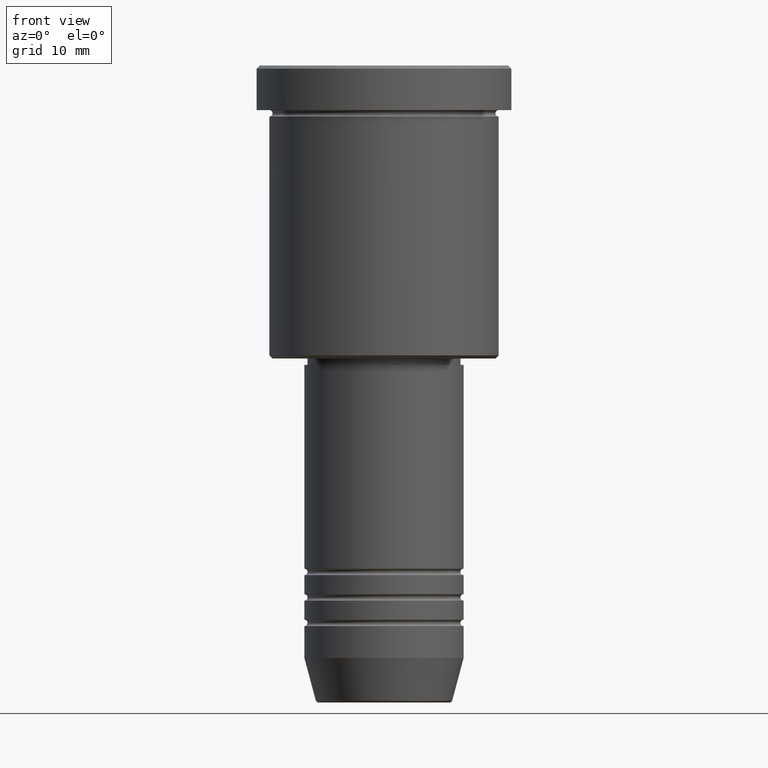
[diagram: clean part render]
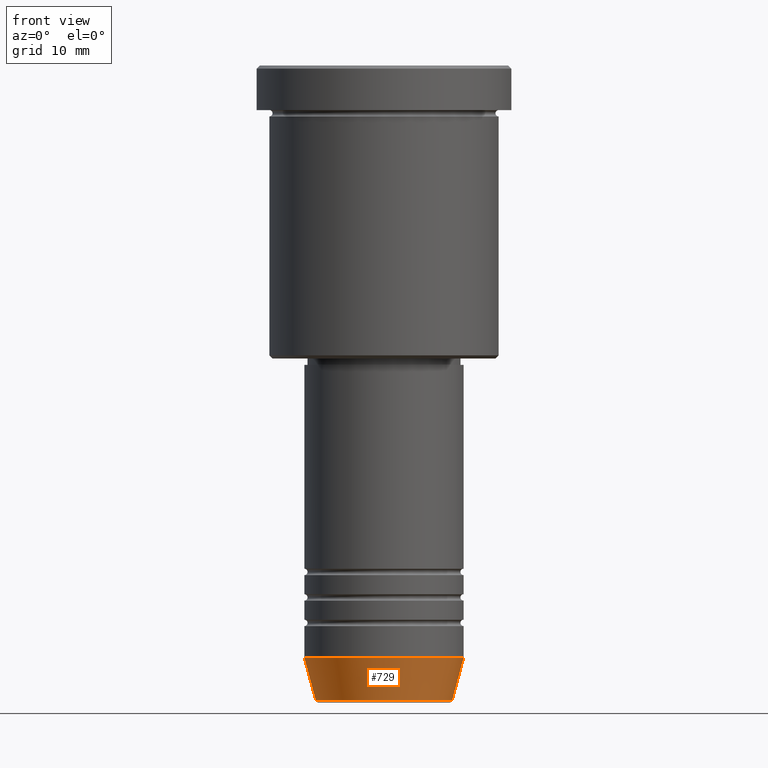
[diagram: same view with one face highlighted and labeled with its STEP entity id]
A machine part, front view. The second image highlights one B-rep face of the part: STEP entity #729.
In plain terms, the highlighted conical surface has half-angle 15 deg.
Its self-contained STEP definition (entity closure, byte-faithful):
#48 = CARTESIAN_POINT ( 'NONE',  ( 0.000000000000000000, 0.000000000000000000, -93.00000000000000000 ) ) ;
#70 = AXIS2_PLACEMENT_3D ( 'NONE', #48, #259, #1154 ) ;
#73 = EDGE_CURVE ( 'NONE', #531, #479, #413, .T. ) ;
#76 = ORIENTED_EDGE ( 'NONE', *, *, #460, .T. ) ;
#82 = CARTESIAN_POINT ( 'NONE',  ( -12.50000000000000000, 1.530808498934191521E-15, -93.00000000000000000 ) ) ;
#93 = CARTESIAN_POINT ( 'NONE',  ( 12.50000000000000000, 0.000000000000000000, -93.00000000000000000 ) ) ;
#119 = ORIENTED_EDGE ( 'NONE', *, *, #1052, .T. ) ;
#140 = ORIENTED_EDGE ( 'NONE', *, *, #73, .F. ) ;
#150 = VECTOR ( 'NONE', #949, 1000.000000000000000 ) ;
#208 = CARTESIAN_POINT ( 'NONE',  ( -10.72365507213718416, 1.422038742429749727E-15, -99.62940952255127058 ) ) ;
#240 = FACE_OUTER_BOUND ( 'NONE', #346, .T. ) ;
#259 = DIRECTION ( 'NONE',  ( -0.000000000000000000, -0.000000000000000000, 1.000000000000000000 ) ) ;
#277 = VECTOR ( 'NONE', #1094, 1000.000000000000000 ) ;
#316 = EDGE_CURVE ( 'NONE', #479, #668, #771, .T. ) ;
#339 = ORIENTED_EDGE ( 'NONE', *, *, #316, .F. ) ;
#344 = DIRECTION ( 'NONE',  ( -0.000000000000000000, -0.000000000000000000, 1.000000000000000000 ) ) ;
#346 = EDGE_LOOP ( 'NONE', ( #140, #76, #119, #339 ) ) ;
#388 = DIRECTION ( 'NONE',  ( 1.000000000000000000, 0.000000000000000000, 0.000000000000000000 ) ) ;
#413 = LINE ( 'NONE', #591, #150 ) ;
#423 = CIRCLE ( 'NONE', #444, 10.72365507213718416 ) ;
#440 = CARTESIAN_POINT ( 'NONE',  ( 12.50000000000000000, 0.000000000000000000, -93.00000000000000000 ) ) ;
#444 = AXIS2_PLACEMENT_3D ( 'NONE', #1079, #979, #388 ) ;
#460 = EDGE_CURVE ( 'NONE', #531, #950, #423, .T. ) ;
#477 = LINE ( 'NONE', #93, #277 ) ;
#479 = VERTEX_POINT ( 'NONE', #82 ) ;
#481 = CARTESIAN_POINT ( 'NONE',  ( 10.72365507213718416, 0.000000000000000000, -99.62940952255127058 ) ) ;
#531 = VERTEX_POINT ( 'NONE', #208 ) ;
#591 = CARTESIAN_POINT ( 'NONE',  ( -12.50000000000000000, 1.530808498934191521E-15, -93.00000000000000000 ) ) ;
#668 = VERTEX_POINT ( 'NONE', #440 ) ;
#729 = ADVANCED_FACE ( 'NONE', ( #240 ), #853, .T. ) ;
#771 = CIRCLE ( 'NONE', #1174, 12.50000000000000000 ) ;
#775 = CARTESIAN_POINT ( 'NONE',  ( 0.000000000000000000, 0.000000000000000000, -93.00000000000000000 ) ) ;
#782 = DIRECTION ( 'NONE',  ( 1.000000000000000000, 0.000000000000000000, 0.000000000000000000 ) ) ;
#853 = CONICAL_SURFACE ( 'NONE', #70, 12.50000000000000000, 0.2617993877991500740 ) ;
#949 = DIRECTION ( 'NONE',  ( -0.2588190451025213501, 3.169619151431772337E-17, 0.9659258262890680902 ) ) ;
#950 = VERTEX_POINT ( 'NONE', #481 ) ;
#979 = DIRECTION ( 'NONE',  ( -0.000000000000000000, -0.000000000000000000, 1.000000000000000000 ) ) ;
#1052 = EDGE_CURVE ( 'NONE', #950, #668, #477, .T. ) ;
#1079 = CARTESIAN_POINT ( 'NONE',  ( 0.000000000000000000, 0.000000000000000000, -99.62940952255127058 ) ) ;
#1094 = DIRECTION ( 'NONE',  ( 0.2588190451025213501, 0.000000000000000000, 0.9659258262890680902 ) ) ;
#1154 = DIRECTION ( 'NONE',  ( 1.000000000000000000, 0.000000000000000000, 0.000000000000000000 ) ) ;
#1174 = AXIS2_PLACEMENT_3D ( 'NONE', #775, #344, #782 ) ;